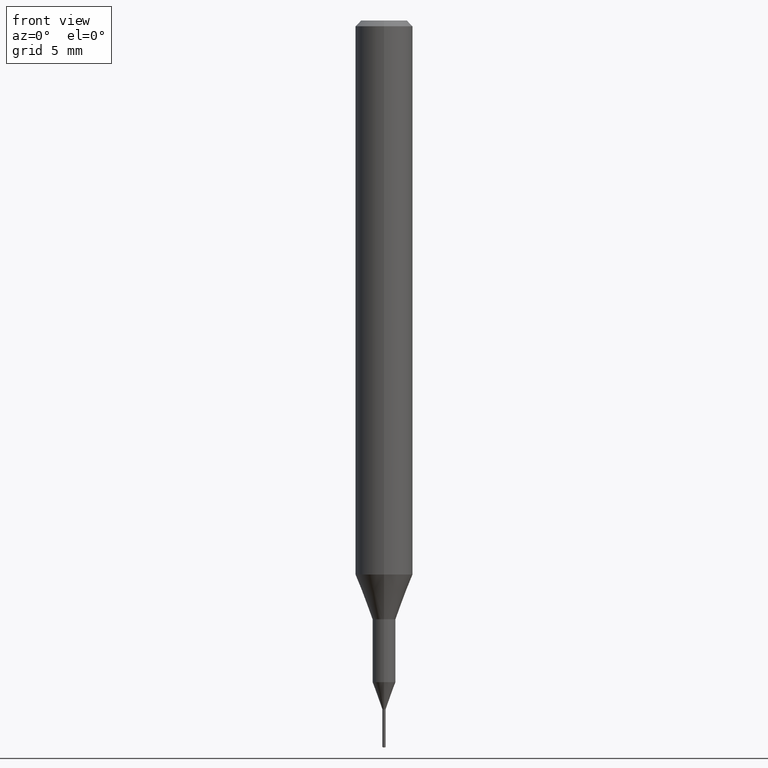
[diagram: clean part render]
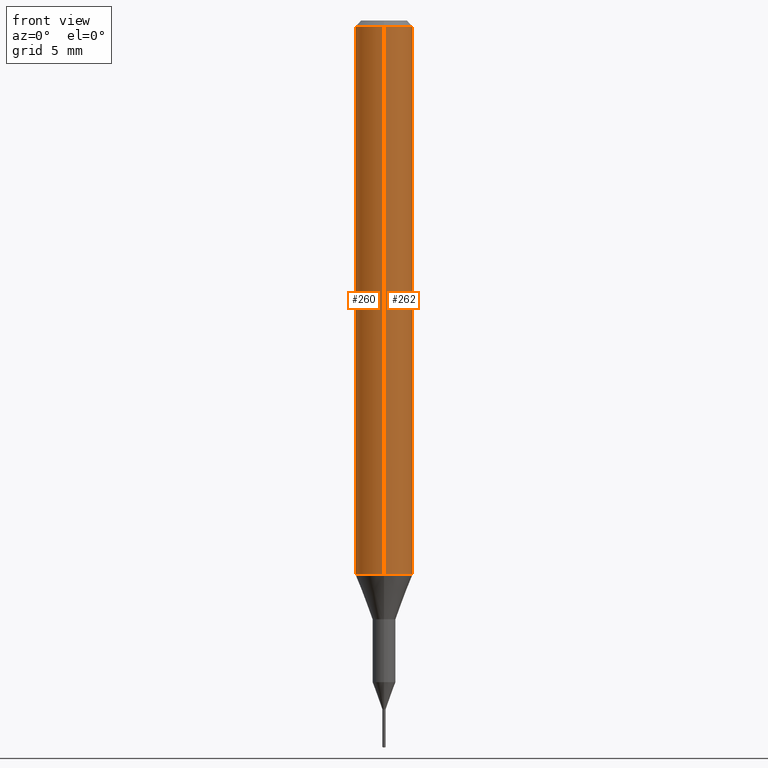
[diagram: same view with one multi-face feature highlighted, each face labeled with its STEP entity id]
A machine part, front view. The highlighted faces form ONE feature: a constant-radius fillet chain: 2 tangent blend faces with common blend radius 1.5 mm. The faces share edges in the B-rep.
Their STEP definitions:
[1] entity #262 (Cylinder):
#136=EDGE_CURVE('',#178,#238,#316,.T.);
#140=EDGE_CURVE('',#176,#178,#320,.T.);
#164=VERTEX_POINT('',#346);
#176=VERTEX_POINT('',#360);
#178=VERTEX_POINT('',#362);
#182=EDGE_CURVE('',#238,#164,#366,.T.);
#210=EDGE_CURVE('',#176,#164,#397,.T.);
#238=VERTEX_POINT('',#429);
#262=ADVANCED_FACE('',(#458),#459,.T.);
#316=CIRCLE('',#517,1.5);
#320=LINE('',#522,#523);
#346=CARTESIAN_POINT('',(1.83690953073357E-016,-1.5,-0.300000000000001));
#360=CARTESIAN_POINT('',(0.0,1.5,-0.300000000000001));
#362=CARTESIAN_POINT('',(0.0,1.5,-28.955));
#366=LINE('',#585,#586);
#397=CIRCLE('',#626,1.5);
#429=CARTESIAN_POINT('',(1.83690953073357E-016,-1.5,-28.955));
#458=FACE_OUTER_BOUND('',#698,.T.);
#459=CYLINDRICAL_SURFACE('',#699,1.5);
#517=AXIS2_PLACEMENT_3D('',#744,#745,#746);
#522=CARTESIAN_POINT('',(-1.83690953073357E-016,1.5,-14.6275));
#523=VECTOR('',#747,1.0);
#585=CARTESIAN_POINT('',(1.83690953073357E-016,-1.5,-14.6275));
#586=VECTOR('',#797,1.0);
#626=AXIS2_PLACEMENT_3D('',#839,#840,#841);
#698=EDGE_LOOP('',(#923,#924,#925,#926));
#699=AXIS2_PLACEMENT_3D('',#927,#928,#929);
#744=CARTESIAN_POINT('',(0.0,0.0,-28.955));
#745=DIRECTION('',(0.0,0.0,-1.0));
#746=DIRECTION('',(0.0,1.0,0.0));
#747=DIRECTION('',(0.0,0.0,-1.0));
#797=DIRECTION('',(-0.0,-0.0,1.0));
#839=CARTESIAN_POINT('',(0.0,0.0,-0.300000000000001));
#840=DIRECTION('',(0.0,0.0,-1.0));
#841=DIRECTION('',(0.0,1.0,0.0));
#923=ORIENTED_EDGE('',*,*,#140,.F.);
#924=ORIENTED_EDGE('',*,*,#210,.T.);
#925=ORIENTED_EDGE('',*,*,#182,.F.);
#926=ORIENTED_EDGE('',*,*,#136,.F.);
#927=CARTESIAN_POINT('',(0.0,0.0,-14.6275));
#928=DIRECTION('',(-0.0,-0.0,1.0));
#929=DIRECTION('',(0.0,1.0,0.0));
[2] entity #260 (Cylinder):
#140=EDGE_CURVE('',#176,#178,#320,.T.);
#142=EDGE_CURVE('',#164,#176,#322,.T.);
#164=VERTEX_POINT('',#346);
#176=VERTEX_POINT('',#360);
#178=VERTEX_POINT('',#362);
#182=EDGE_CURVE('',#238,#164,#366,.T.);
#188=EDGE_CURVE('',#238,#178,#372,.T.);
#238=VERTEX_POINT('',#429);
#260=ADVANCED_FACE('',(#455),#456,.T.);
#320=LINE('',#522,#523);
#322=CIRCLE('',#526,1.5);
#346=CARTESIAN_POINT('',(1.83690953073357E-016,-1.5,-0.300000000000001));
#360=CARTESIAN_POINT('',(0.0,1.5,-0.300000000000001));
#362=CARTESIAN_POINT('',(0.0,1.5,-28.955));
#366=LINE('',#585,#586);
#372=CIRCLE('',#595,1.5);
#429=CARTESIAN_POINT('',(1.83690953073357E-016,-1.5,-28.955));
#455=FACE_OUTER_BOUND('',#695,.T.);
#456=CYLINDRICAL_SURFACE('',#696,1.5);
#522=CARTESIAN_POINT('',(-1.83690953073357E-016,1.5,-14.6275));
#523=VECTOR('',#747,1.0);
#526=AXIS2_PLACEMENT_3D('',#748,#749,#750);
#585=CARTESIAN_POINT('',(1.83690953073357E-016,-1.5,-14.6275));
#586=VECTOR('',#797,1.0);
#595=AXIS2_PLACEMENT_3D('',#804,#805,#806);
#695=EDGE_LOOP('',(#915,#916,#917,#918));
#696=AXIS2_PLACEMENT_3D('',#919,#920,#921);
#747=DIRECTION('',(0.0,0.0,-1.0));
#748=CARTESIAN_POINT('',(0.0,0.0,-0.300000000000001));
#749=DIRECTION('',(0.0,0.0,-1.0));
#750=DIRECTION('',(0.0,1.0,0.0));
#797=DIRECTION('',(-0.0,-0.0,1.0));
#804=CARTESIAN_POINT('',(0.0,0.0,-28.955));
#805=DIRECTION('',(0.0,0.0,-1.0));
#806=DIRECTION('',(0.0,1.0,0.0));
#915=ORIENTED_EDGE('',*,*,#140,.T.);
#916=ORIENTED_EDGE('',*,*,#188,.F.);
#917=ORIENTED_EDGE('',*,*,#182,.T.);
#918=ORIENTED_EDGE('',*,*,#142,.T.);
#919=CARTESIAN_POINT('',(0.0,0.0,-14.6275));
#920=DIRECTION('',(-0.0,-0.0,1.0));
#921=DIRECTION('',(0.0,1.0,0.0));